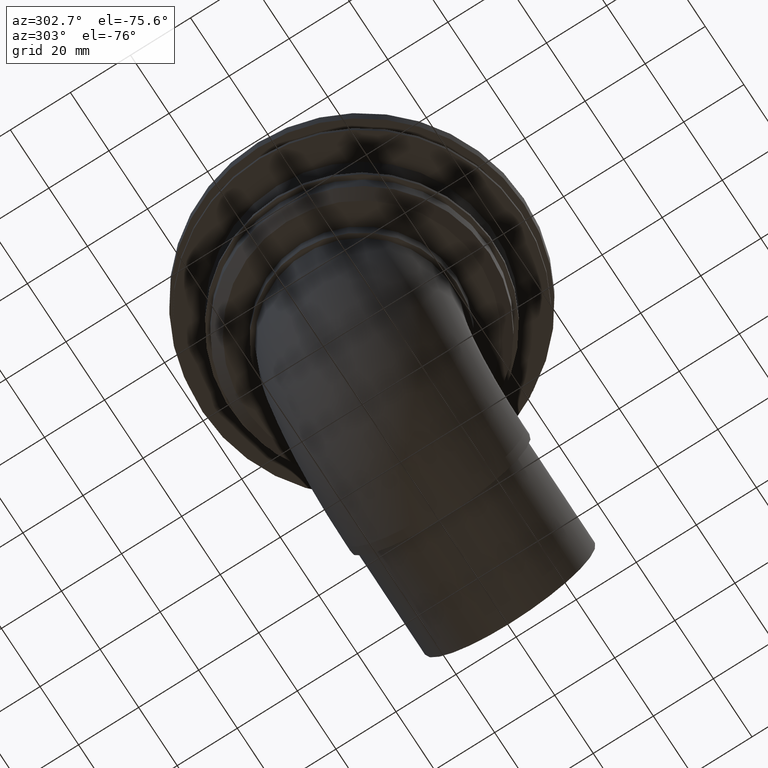
[diagram: clean part render]
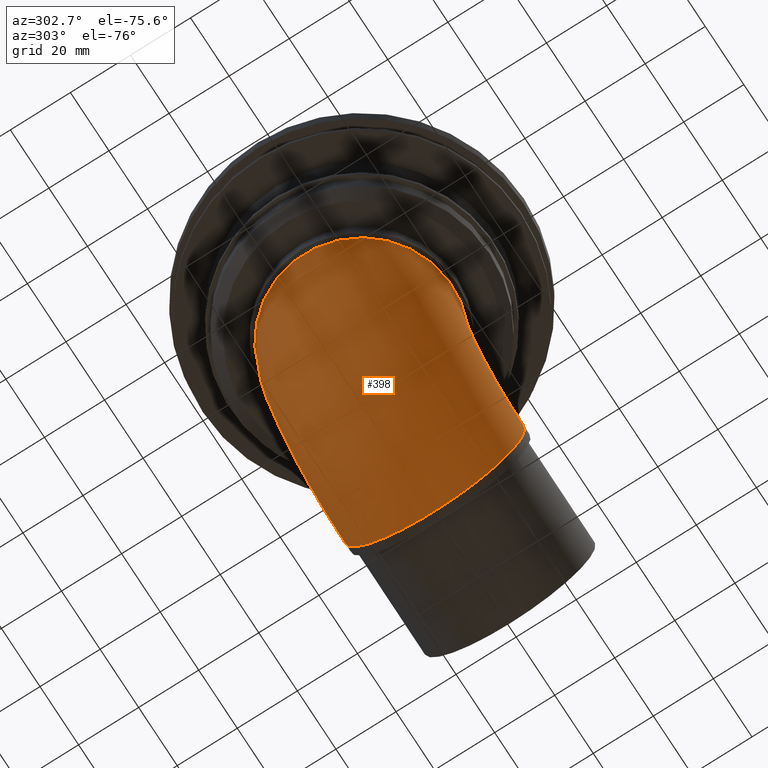
[diagram: same view with one face highlighted and labeled with its STEP entity id]
A machine part, auxiliary view. The second image highlights one B-rep face of the part: STEP entity #398.
In plain terms, the highlighted toroidal blend (fillet) surface has major radius 38 mm and minor (blend) radius 30 mm.
Its self-contained STEP definition (entity closure, byte-faithful):
#21=TOROIDAL_SURFACE('',#475,38.,30.);
#98=ORIENTED_EDGE('',*,*,#141,.T.);
#99=ORIENTED_EDGE('',*,*,#139,.F.);
#139=EDGE_CURVE('',#174,#174,#209,.T.);
#141=EDGE_CURVE('',#176,#176,#211,.T.);
#174=VERTEX_POINT('',#713);
#176=VERTEX_POINT('',#719);
#209=CIRCLE('',#472,30.);
#211=CIRCLE('',#476,30.);
#273=EDGE_LOOP('',(#98));
#274=EDGE_LOOP('',(#99));
#343=FACE_BOUND('',#273,.T.);
#344=FACE_BOUND('',#274,.T.);
#398=ADVANCED_FACE('',(#343,#344),#21,.T.);
#472=AXIS2_PLACEMENT_3D('',#712,#598,#599);
#475=AXIS2_PLACEMENT_3D('',#717,#604,#605);
#476=AXIS2_PLACEMENT_3D('',#718,#606,#607);
#598=DIRECTION('',(0.,0.,1.));
#599=DIRECTION('',(1.,0.,0.));
#604=DIRECTION('',(0.,1.,0.));
#605=DIRECTION('',(0.,0.,1.));
#606=DIRECTION('',(-0.999986292247427,0.,0.00523596383141954));
#607=DIRECTION('',(0.00523596383141954,0.,0.999986292247427));
#712=CARTESIAN_POINT('',(0.,0.,-47.));
#713=CARTESIAN_POINT('',(30.,0.,-47.));
#717=CARTESIAN_POINT('',(38.,0.,-47.));
#718=CARTESIAN_POINT('',(37.8010333744061,0.,-84.9994791054022));
#719=CARTESIAN_POINT('',(37.9581122893486,0.,-54.9998903379794));